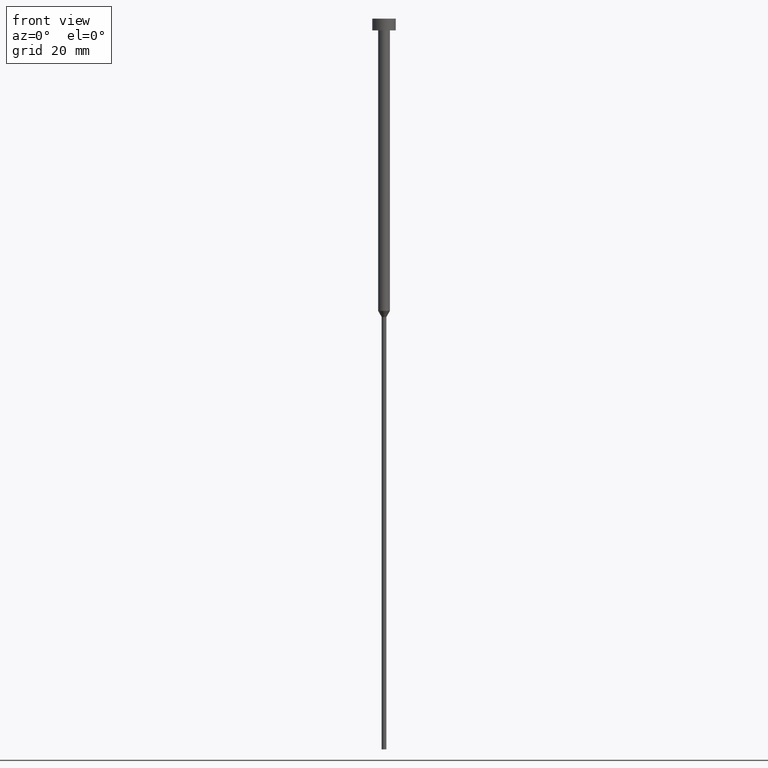
[diagram: clean part render]
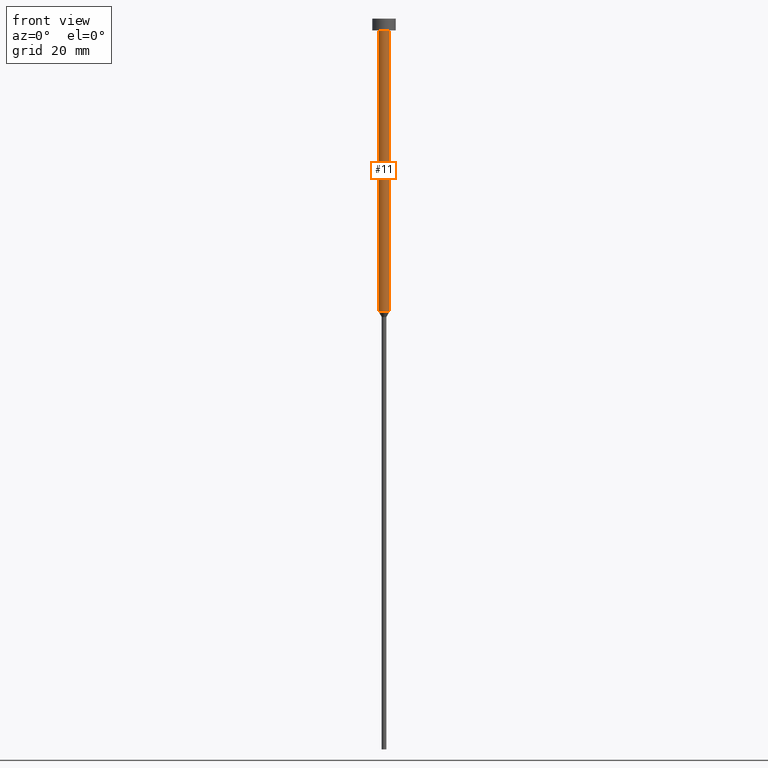
[diagram: same view with one face highlighted and labeled with its STEP entity id]
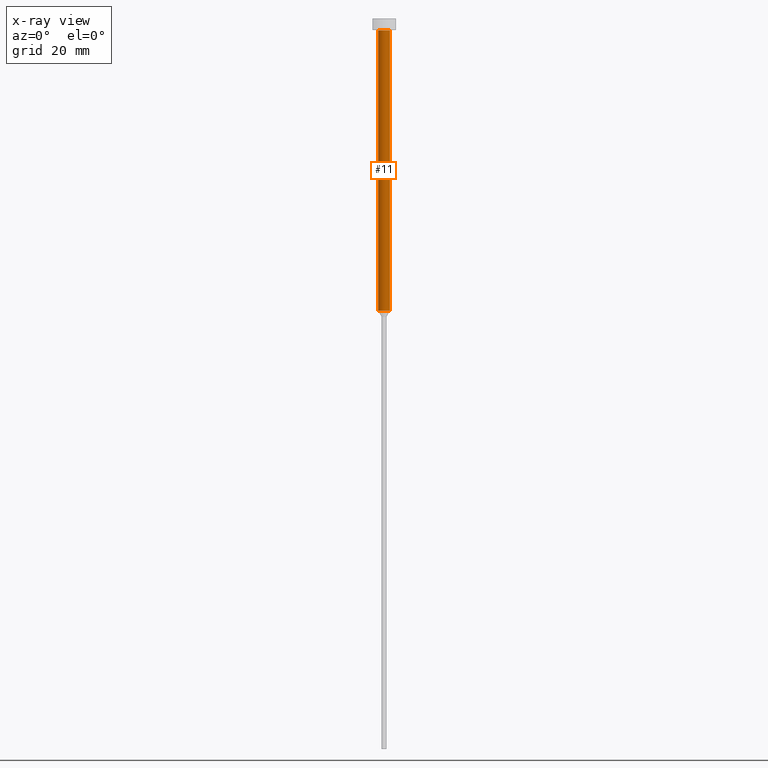
[diagram: x-ray of the same camera — body ghosted, the highlighted face saturated]
A machine part, front view. The second image highlights one B-rep face of the part: STEP entity #11.
The next image is the same camera in x-ray: the body ghosted, the highlighted face saturated — about 0% of this face is hidden behind the body in this view.
In plain terms, the highlighted cylindrical surface (edge-blend (fillet) strip) has radius 1 mm, axis along (-0, -0, 1).
Its self-contained STEP definition (entity closure, byte-faithful):
#1 = VERTEX_POINT ( 'NONE', #44 ) ;
#5 = EDGE_CURVE ( 'NONE', #203, #1, #145, .T. ) ;
#7 = LINE ( 'NONE', #185, #189 ) ;
#11 = ADVANCED_FACE ( 'NONE', ( #38 ), #15, .T. ) ;
#15 = CYLINDRICAL_SURFACE ( 'NONE', #160, 1.000000000000003331 ) ;
#17 = VERTEX_POINT ( 'NONE', #328 ) ;
#25 = CARTESIAN_POINT ( 'NONE',  ( 0.000000000000000000, 0.000000000000000000, -2.000000000000000444 ) ) ;
#33 = AXIS2_PLACEMENT_3D ( 'NONE', #129, #264, #45 ) ;
#38 = FACE_OUTER_BOUND ( 'NONE', #152, .T. ) ;
#41 = CIRCLE ( 'NONE', #33, 1.000000000000003109 ) ;
#44 = CARTESIAN_POINT ( 'NONE',  ( 1.000000000000003553, 0.000000000000000000, -2.000000000000000444 ) ) ;
#45 = DIRECTION ( 'NONE',  ( 1.000000000000000000, 0.000000000000000000, 0.000000000000000000 ) ) ;
#66 = VERTEX_POINT ( 'NONE', #239 ) ;
#85 = DIRECTION ( 'NONE',  ( 1.000000000000000000, 0.000000000000000000, 0.000000000000000000 ) ) ;
#111 = CARTESIAN_POINT ( 'NONE',  ( 1.000000000000003331, 0.000000000000000000, 0.000000000000000000 ) ) ;
#129 = CARTESIAN_POINT ( 'NONE',  ( 0.000000000000000000, 0.000000000000000000, -50.00000000000000000 ) ) ;
#138 = CARTESIAN_POINT ( 'NONE',  ( 0.000000000000000000, 0.000000000000000000, 0.000000000000000000 ) ) ;
#142 = ORIENTED_EDGE ( 'NONE', *, *, #299, .F. ) ;
#145 = LINE ( 'NONE', #111, #191 ) ;
#150 = DIRECTION ( 'NONE',  ( -0.000000000000000000, -0.000000000000000000, 1.000000000000000000 ) ) ;
#152 = EDGE_LOOP ( 'NONE', ( #142, #228, #343, #353 ) ) ;
#153 = DIRECTION ( 'NONE',  ( -0.000000000000000000, -0.000000000000000000, 1.000000000000000000 ) ) ;
#160 = AXIS2_PLACEMENT_3D ( 'NONE', #138, #256, #85 ) ;
#168 = EDGE_CURVE ( 'NONE', #66, #203, #41, .T. ) ;
#185 = CARTESIAN_POINT ( 'NONE',  ( -1.000000000000003331, 1.224646799147357151E-16, 0.000000000000000000 ) ) ;
#189 = VECTOR ( 'NONE', #153, 1000.000000000000000 ) ;
#191 = VECTOR ( 'NONE', #284, 1000.000000000000000 ) ;
#192 = AXIS2_PLACEMENT_3D ( 'NONE', #25, #150, #327 ) ;
#203 = VERTEX_POINT ( 'NONE', #332 ) ;
#228 = ORIENTED_EDGE ( 'NONE', *, *, #168, .T. ) ;
#239 = CARTESIAN_POINT ( 'NONE',  ( -1.000000000000003109, 1.224646799147356905E-16, -50.00000000000000000 ) ) ;
#243 = CIRCLE ( 'NONE', #192, 1.000000000000003553 ) ;
#256 = DIRECTION ( 'NONE',  ( -0.000000000000000000, -0.000000000000000000, 1.000000000000000000 ) ) ;
#264 = DIRECTION ( 'NONE',  ( -0.000000000000000000, -0.000000000000000000, 1.000000000000000000 ) ) ;
#284 = DIRECTION ( 'NONE',  ( -0.000000000000000000, -0.000000000000000000, 1.000000000000000000 ) ) ;
#299 = EDGE_CURVE ( 'NONE', #66, #17, #7, .T. ) ;
#302 = EDGE_CURVE ( 'NONE', #17, #1, #243, .T. ) ;
#327 = DIRECTION ( 'NONE',  ( 1.000000000000000000, 0.000000000000000000, 0.000000000000000000 ) ) ;
#328 = CARTESIAN_POINT ( 'NONE',  ( -1.000000000000003553, 1.224646799147357398E-16, -2.000000000000000444 ) ) ;
#332 = CARTESIAN_POINT ( 'NONE',  ( 1.000000000000003109, 0.000000000000000000, -50.00000000000000000 ) ) ;
#343 = ORIENTED_EDGE ( 'NONE', *, *, #5, .T. ) ;
#353 = ORIENTED_EDGE ( 'NONE', *, *, #302, .F. ) ;